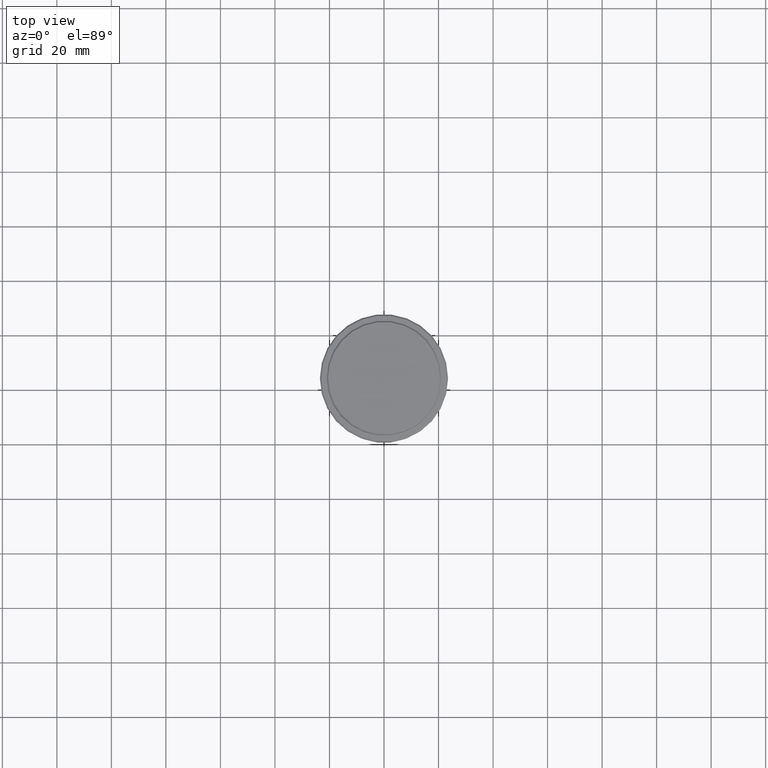
[diagram: clean part render]
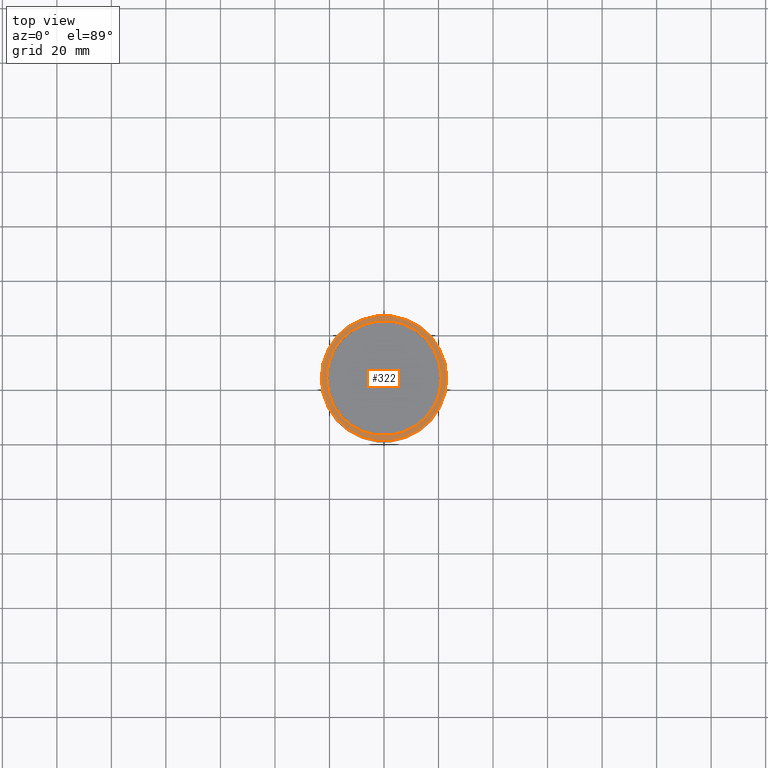
[diagram: same view with one face highlighted and labeled with its STEP entity id]
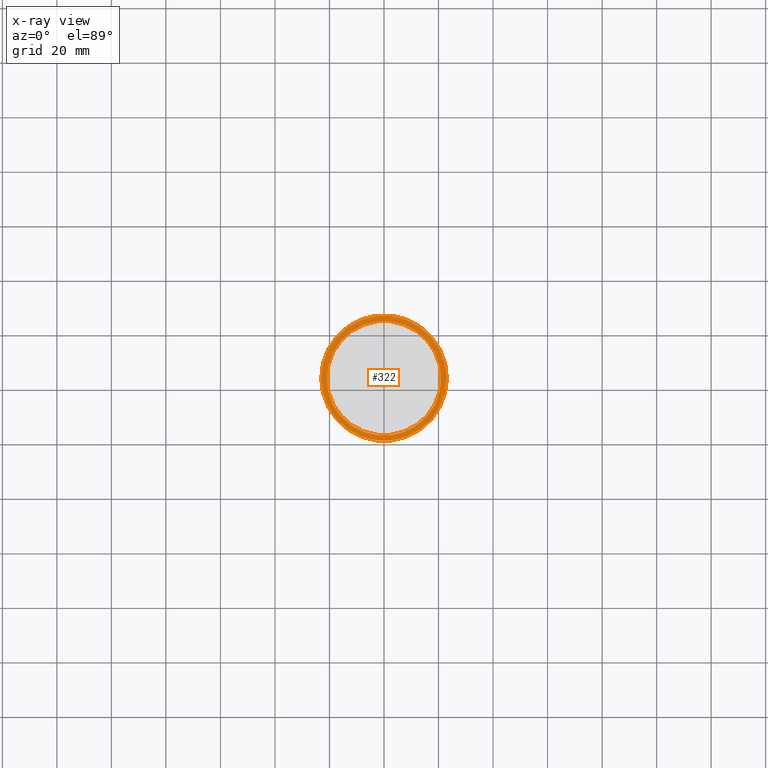
[diagram: x-ray of the same camera — body ghosted, the highlighted face saturated]
A machine part, top view. The second image highlights one B-rep face of the part: STEP entity #322.
The next image is the same camera in x-ray: the body ghosted, the highlighted face saturated — about 0% of this face is hidden behind the body in this view.
In plain terms, the highlighted planar face has unit normal (0, -0, 1).
Its self-contained STEP definition (entity closure, byte-faithful):
#15 = CIRCLE ( 'NONE', #817, 20.99999999999999289 ) ;
#55 = VERTEX_POINT ( 'NONE', #437 ) ;
#56 = CIRCLE ( 'NONE', #423, 22.99999999999999645 ) ;
#138 = CARTESIAN_POINT ( 'NONE',  ( 0.000000000000000000, 20.49999999999999645, -9.000000000000001776 ) ) ;
#160 = CARTESIAN_POINT ( 'NONE',  ( 20.99999999999999289, 0.000000000000000000, -9.000000000000001776 ) ) ;
#232 = DIRECTION ( 'NONE',  ( -0.000000000000000000, -0.000000000000000000, 1.000000000000000000 ) ) ;
#233 = FACE_BOUND ( 'NONE', #582, .T. ) ;
#239 = CIRCLE ( 'NONE', #1357, 22.99999999999999645 ) ;
#245 = EDGE_CURVE ( 'NONE', #1376, #635, #15, .T. ) ;
#308 = DIRECTION ( 'NONE',  ( -0.000000000000000000, -0.000000000000000000, 1.000000000000000000 ) ) ;
#322 = ADVANCED_FACE ( 'NONE', ( #1305, #233 ), #678, .T. ) ;
#340 = ORIENTED_EDGE ( 'NONE', *, *, #245, .T. ) ;
#373 = CARTESIAN_POINT ( 'NONE',  ( 0.000000000000000000, 0.000000000000000000, -9.000000000000001776 ) ) ;
#423 = AXIS2_PLACEMENT_3D ( 'NONE', #775, #232, #1413 ) ;
#424 = DIRECTION ( 'NONE',  ( 1.000000000000000000, 0.000000000000000000, 0.000000000000000000 ) ) ;
#437 = CARTESIAN_POINT ( 'NONE',  ( 22.99999999999999645, 2.847303808017596139E-15, -9.000000000000001776 ) ) ;
#450 = DIRECTION ( 'NONE',  ( 0.000000000000000000, 0.000000000000000000, -1.000000000000000000 ) ) ;
#468 = ORIENTED_EDGE ( 'NONE', *, *, #913, .T. ) ;
#582 = EDGE_LOOP ( 'NONE', ( #340, #468 ) ) ;
#583 = DIRECTION ( 'NONE',  ( 1.000000000000000000, 0.000000000000000000, 0.000000000000000000 ) ) ;
#620 = EDGE_CURVE ( 'NONE', #55, #636, #239, .T. ) ;
#632 = CARTESIAN_POINT ( 'NONE',  ( -20.99999999999999289, 2.571758278209440872E-15, -9.000000000000001776 ) ) ;
#635 = VERTEX_POINT ( 'NONE', #632 ) ;
#636 = VERTEX_POINT ( 'NONE', #1264 ) ;
#678 = PLANE ( 'NONE',  #1107 ) ;
#708 = ORIENTED_EDGE ( 'NONE', *, *, #741, .T. ) ;
#741 = EDGE_CURVE ( 'NONE', #636, #55, #56, .T. ) ;
#775 = CARTESIAN_POINT ( 'NONE',  ( 0.000000000000000000, 0.000000000000000000, -9.000000000000001776 ) ) ;
#798 = DIRECTION ( 'NONE',  ( 0.000000000000000000, -0.000000000000000000, 1.000000000000000000 ) ) ;
#817 = AXIS2_PLACEMENT_3D ( 'NONE', #873, #450, #1009 ) ;
#873 = CARTESIAN_POINT ( 'NONE',  ( 0.000000000000000000, 0.000000000000000000, -9.000000000000001776 ) ) ;
#892 = AXIS2_PLACEMENT_3D ( 'NONE', #373, #1230, #583 ) ;
#913 = EDGE_CURVE ( 'NONE', #635, #1376, #1321, .T. ) ;
#958 = CARTESIAN_POINT ( 'NONE',  ( 0.000000000000000000, 0.000000000000000000, -9.000000000000001776 ) ) ;
#1009 = DIRECTION ( 'NONE',  ( 1.000000000000000000, 0.000000000000000000, 0.000000000000000000 ) ) ;
#1098 = DIRECTION ( 'NONE',  ( 1.000000000000000000, 0.000000000000000000, 0.000000000000000000 ) ) ;
#1107 = AXIS2_PLACEMENT_3D ( 'NONE', #138, #798, #1098 ) ;
#1138 = EDGE_LOOP ( 'NONE', ( #708, #1399 ) ) ;
#1230 = DIRECTION ( 'NONE',  ( 0.000000000000000000, 0.000000000000000000, -1.000000000000000000 ) ) ;
#1264 = CARTESIAN_POINT ( 'NONE',  ( -22.99999999999999645, 0.000000000000000000, -9.000000000000001776 ) ) ;
#1305 = FACE_OUTER_BOUND ( 'NONE', #1138, .T. ) ;
#1321 = CIRCLE ( 'NONE', #892, 20.99999999999999289 ) ;
#1357 = AXIS2_PLACEMENT_3D ( 'NONE', #958, #308, #424 ) ;
#1376 = VERTEX_POINT ( 'NONE', #160 ) ;
#1399 = ORIENTED_EDGE ( 'NONE', *, *, #620, .T. ) ;
#1413 = DIRECTION ( 'NONE',  ( 1.000000000000000000, 0.000000000000000000, 0.000000000000000000 ) ) ;